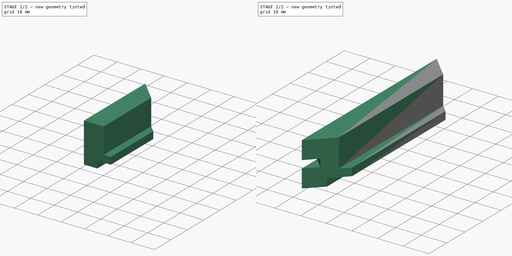
[diagram: build sequence overview — one tinted view per stage of 2, left to right]
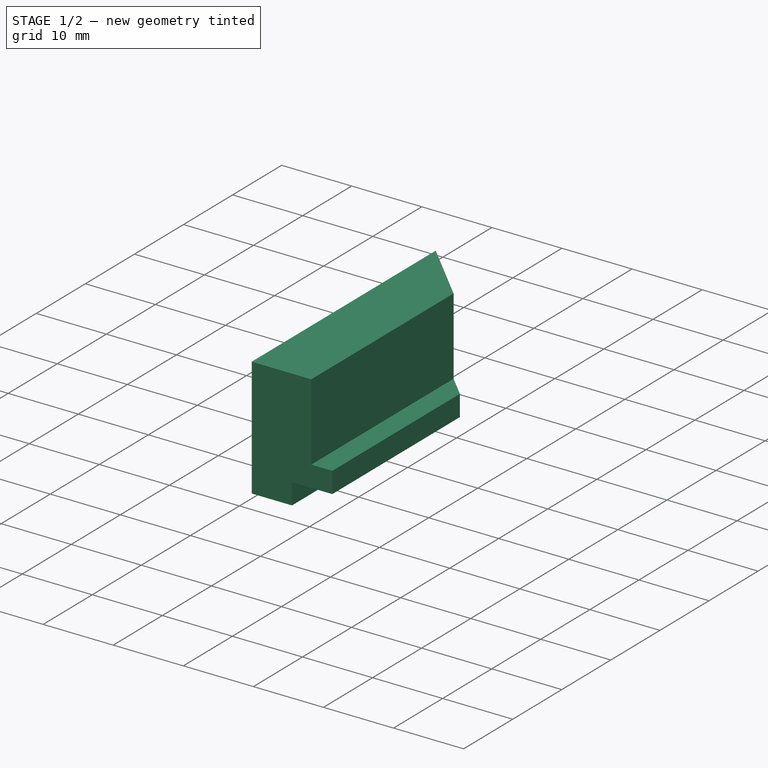
[diagram: stage 1 of 2 — iso view after this stage's code; geometry added in this stage tinted green]
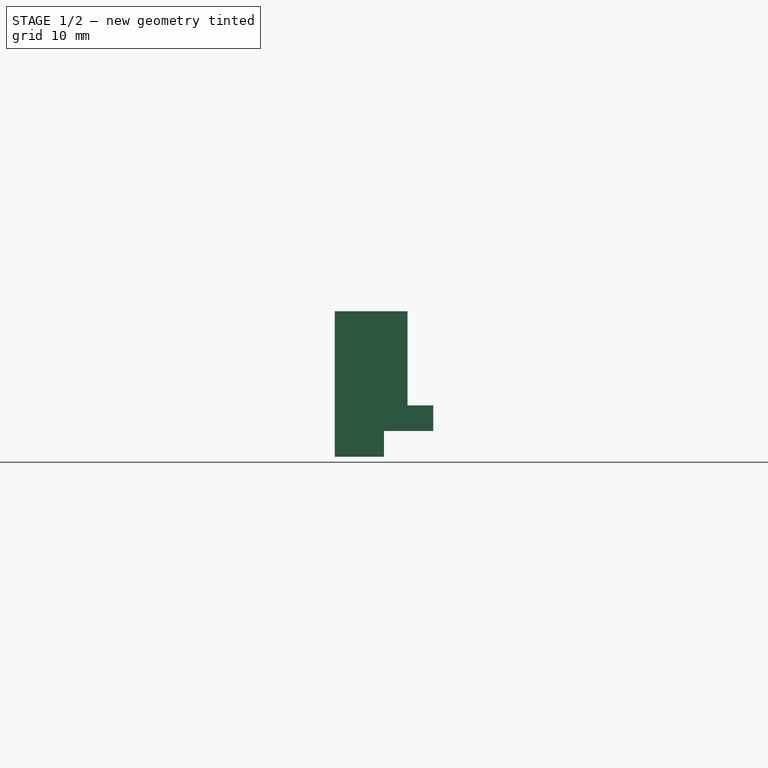
[diagram: stage 1 of 2 — front view after this stage's code; geometry added in this stage tinted green]
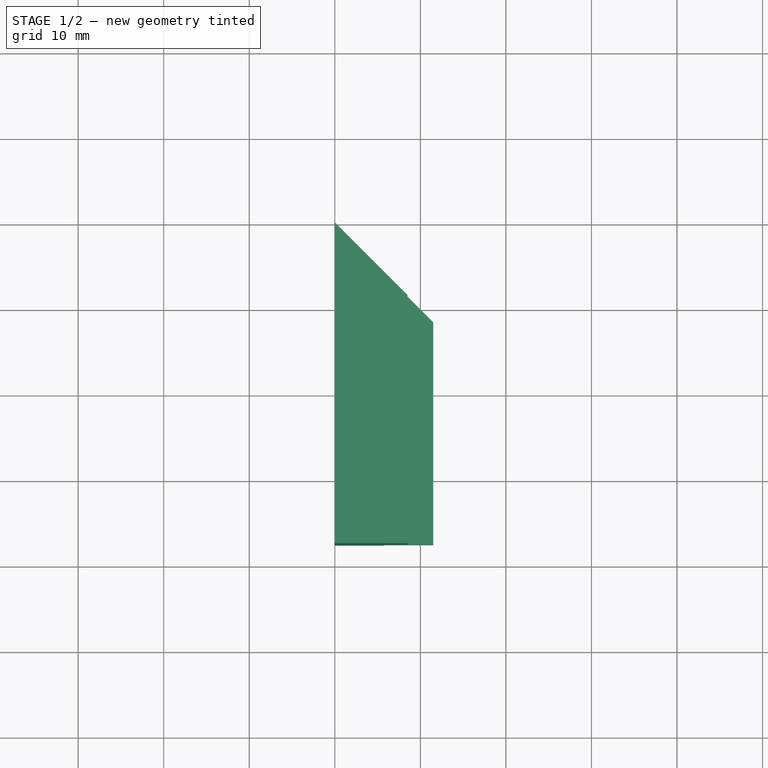
[diagram: stage 1 of 2 — top view after this stage's code; geometry added in this stage tinted green]
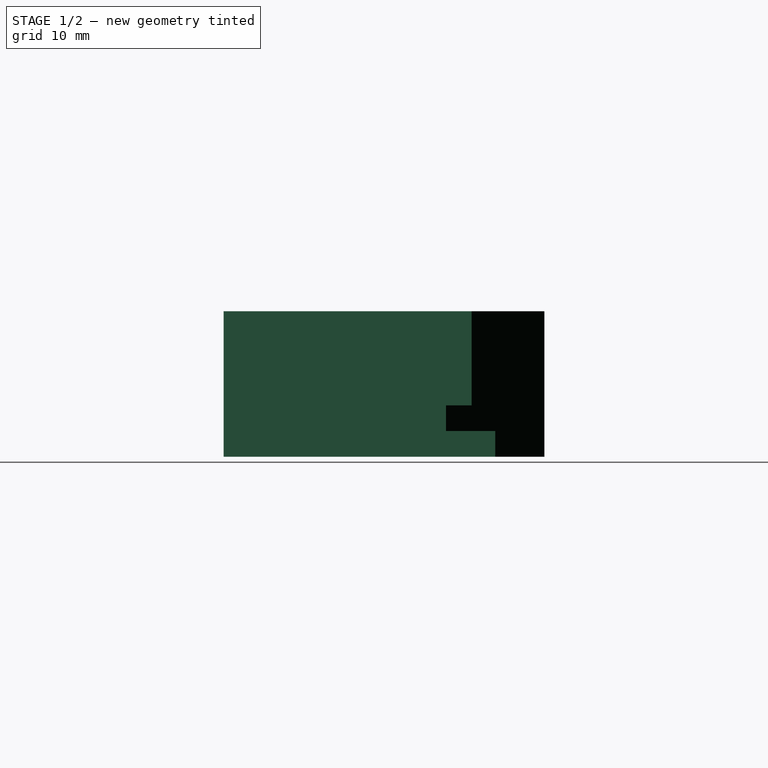
[diagram: stage 1 of 2 — right view after this stage's code; geometry added in this stage tinted green]
FCSTD DOCUMENT  (FreeCAD 0.21R33694 (Git))
Label: kumiko_lid_short
License: All rights reserved
LicenseURL: https://en.wikipedia.org/wiki/All_rights_reserved
objects: Sketcher::SketchObject×3, PartDesign::Pocket×2, PartDesign::Pad×1, PartDesign::Mirrored×1, PartDesign::Body×1, App::Link×1
note: 11 computed .brp shape members not serialized (recipe doc carries the construction recipe); baked Part::Feature solids carry a one-line shape summary decoded from their .brp
EXTERNAL_REF file=../../master_kumiko_box.FCStd obj=Spreadsheet

FEATURE [Sketcher::SketchObject] Sketch004  label="lid_profile_drawing"
  FullyConstrained = true
  MapMode = 5
  Placement = pos=(0,0,0) rot=(1,0,0;1.5708rad)
  Support = -> [XZ_Plane001]
  expr: Constraints[18] = <<SpreadSheet>>.lid_height
  expr: Constraints[19] = <<SpreadSheet>>.kumiko_hight
  expr: Constraints[20] = <<SpreadSheet>>.lid_lip_hight
  expr: Constraints[21] = <<SpreadSheet>>.lid_frame_width
  expr: Constraints[22] = <<SpreadSheet>>.box_thickness / 2
  expr: Constraints[23] = <<SpreadSheet>>.box_thickness
  sketch-geometry (8):
    g0: LineSegment StartX=0 StartY=0 StartZ=0 EndX=0 EndY=17 EndZ=0
    g1: LineSegment StartX=0 StartY=17 StartZ=0 EndX=8.5 EndY=17 EndZ=0
    g2: LineSegment StartX=8.5 StartY=17 StartZ=0 EndX=8.5 EndY=6 EndZ=0
    g3: LineSegment StartX=8.5 StartY=6 StartZ=0 EndX=11.5 EndY=6 EndZ=0
    g4: LineSegment StartX=11.5 StartY=6 StartZ=0 EndX=11.5 EndY=3 EndZ=0
    g5: LineSegment StartX=11.5 StartY=3 StartZ=0 EndX=5.75 EndY=3 EndZ=0
    g6: LineSegment StartX=5.75 StartY=3 StartZ=0 EndX=5.75 EndY=0 EndZ=0
    g7: LineSegment StartX=5.75 StartY=0 StartZ=0 EndX=0 EndY=0 EndZ=0
  constraints (24):
    c: Vertical(g0)
    c: Coincident(g1,g0)
    c: Horizontal(g1)
    c: Coincident(g2,g1)
    c: Vertical(g2)
    c: Coincident(g3,g2)
    c: Horizontal(g3)
    c: Coincident(g4,g3)
    c: Vertical(g4)
    c: Coincident(g5,g4)
    c: Horizontal(g5)
    c: Coincident(g6,g5)
    c: Vertical(g6)
    c: Coincident(g7,g6)
    c: Coincident(g7,g0)
    c: Horizontal(g7)
    c: DistanceX(g-1,g0) = 0
    c: DistanceY(g-1,g0) = 0
    c: DistanceY(g0,g0) = 17
    c: DistanceY(g2,g2) = 11
    c: DistanceY(g4,g4) = 3
    c: DistanceX(g1,g1) = 8.5
    c: DistanceX(g5,g5) = 5.75
    c: DistanceX(g0,g3) = 11.5
FEATURE [PartDesign::Pad] Pad001  label="lid_extrusion"
  Direction = (0,-1,-2e-16)
  Length = 37.5
  Length2 = 10
  Placement = pos=(0,0,0) rot=(1,0,0;1.5708rad)
  Profile = -> Sketch004
  ReferenceAxis = -> Sketch004 [N_Axis]
  Type = 0
  expr: Length = <<SpreadSheet>>.box_width / 2
FEATURE [Sketcher::SketchObject] Sketch005  label="miter_drawing"
  FullyConstrained = true
  MapMode = 5
  Placement = pos=(0,0,0) rot=(1,0,0;3.14159rad)
  Support = -> [Pad001]
  expr: Constraints[6] = <<SpreadSheet>>.box_thickness
  expr: Constraints[8] = <<SpreadSheet>>.box_thickness
  sketch-geometry (3):
    g0: LineSegment StartX=0 StartY=0 StartZ=0 EndX=11.5 EndY=0 EndZ=0
    g1: LineSegment StartX=11.5 StartY=0 StartZ=0 EndX=11.5 EndY=11.5 EndZ=0
    g2: LineSegment StartX=11.5 StartY=11.5 StartZ=0 EndX=0 EndY=0 EndZ=0
  constraints (9):
    c: Horizontal(g0)
    c: Coincident(g1,g0)
    c: Vertical(g1)
    c: Coincident(g2,g1)
    c: Coincident(g2,g0)
    c: DistanceX(g-1,g0) = 0
    c: DistanceX(g-1,g0) = 11.5
    c: DistanceY(g0,g-1) = 0
    c: DistanceY(g0,g1) = 11.5
FEATURE [PartDesign::Pocket] Pocket002  label="miter_cut"
  BaseFeature = -> Pad001
  Direction = (0,-2e-16,1)
  Length = 17
  Length2 = 5
  Placement = pos=(0,0,0) rot=(1,0,0;1.5708rad)
  Profile = -> Sketch005
  ReferenceAxis = -> Sketch005 [N_Axis]
  Type = 0
  expr: Length = <<SpreadSheet>>.lid_height
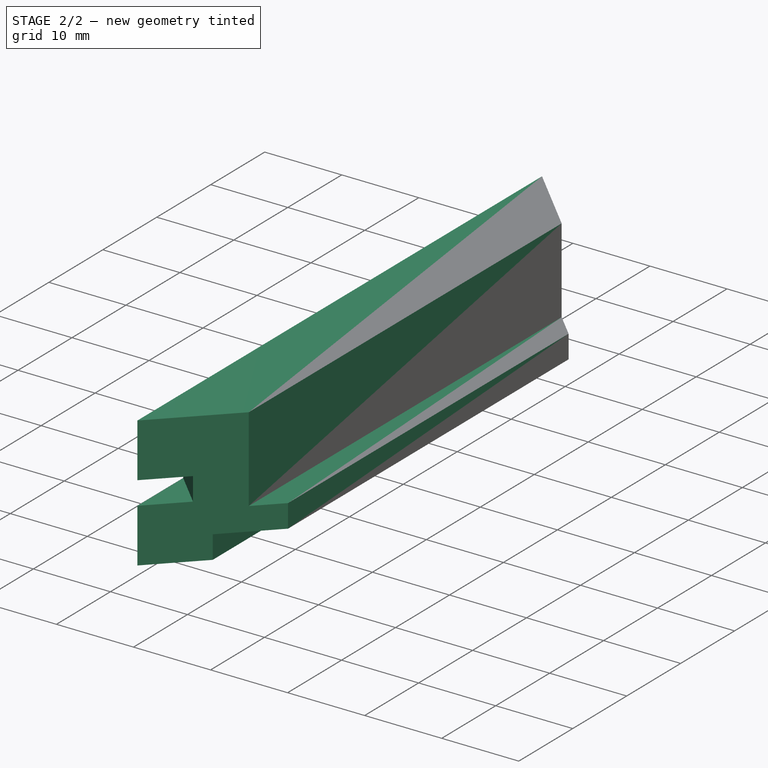
[diagram: stage 2 of 2 — iso view after this stage's code; geometry added in this stage tinted green]
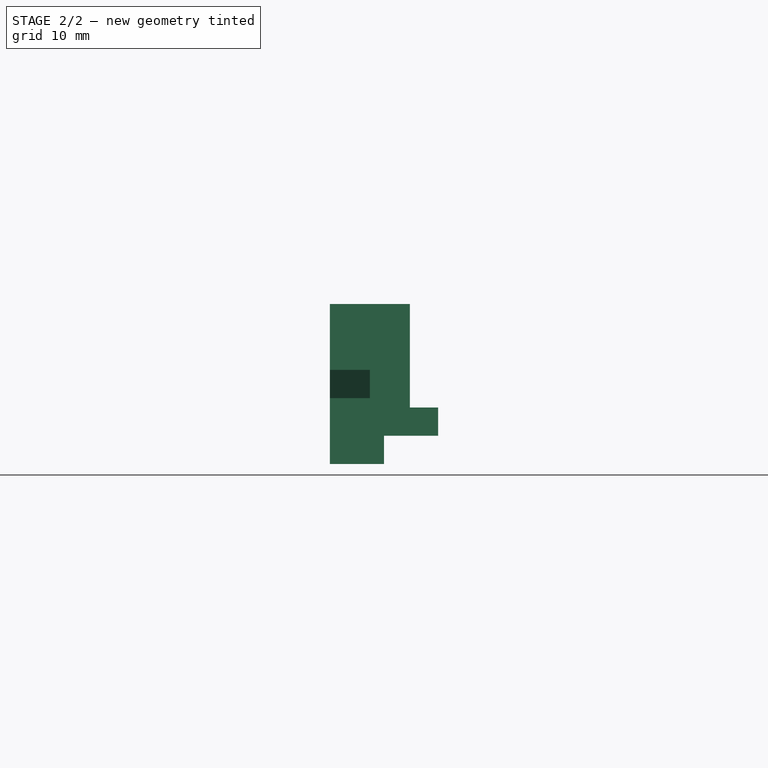
[diagram: stage 2 of 2 — front view after this stage's code; geometry added in this stage tinted green]
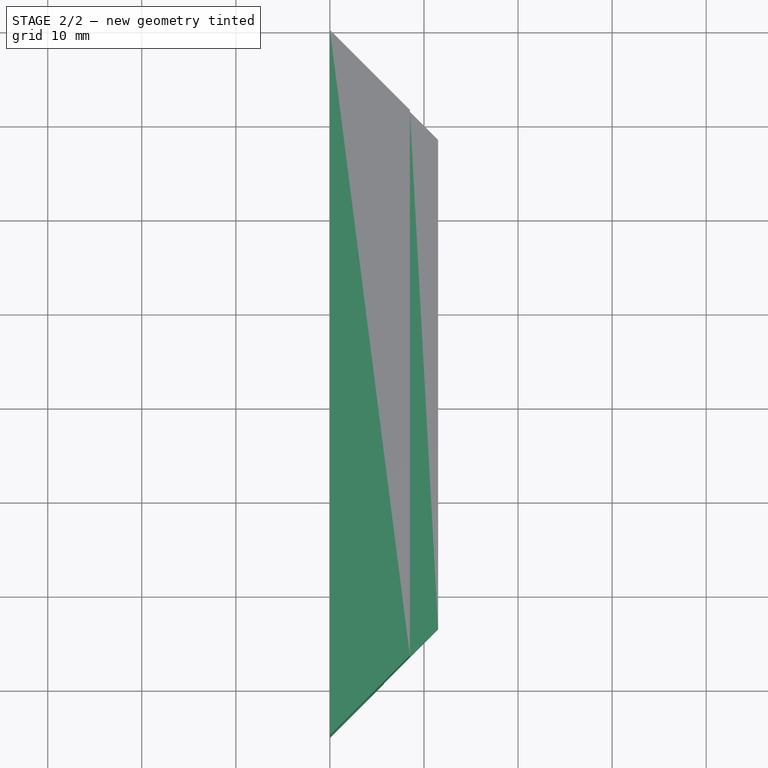
[diagram: stage 2 of 2 — top view after this stage's code; geometry added in this stage tinted green]
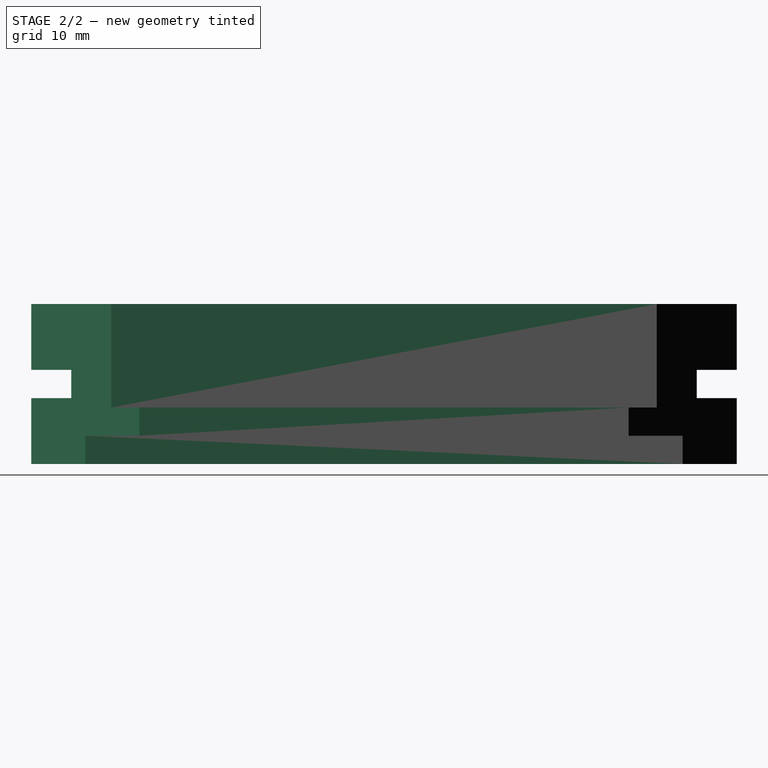
[diagram: stage 2 of 2 — right view after this stage's code; geometry added in this stage tinted green]
FEATURE [Sketcher::SketchObject] Sketch006  label="miter_key_drawing"
  FullyConstrained = true
  MapMode = 5
  Placement = pos=(0,0,0) rot=(0.678598,0.281085,0.678598;3.68962rad)
  Support = -> [Pocket002]
  expr: Constraints[10] = <<SpreadSheet>>.kumiko_thickness
  expr: Constraints[11] = <<SpreadSheet>>.lid_frame_width * sqrt(2) / 2
  expr: Constraints[9] = (<<SpreadSheet>>.lid_height - <<SpreadSheet>>.kumiko_thickness) / 2
  sketch-geometry (4):
    g0: LineSegment StartX=7 StartY=6.01041 StartZ=0 EndX=10 EndY=6.01041 EndZ=0
    g1: LineSegment StartX=10 StartY=6.01041 StartZ=0 EndX=10 EndY=0 EndZ=0
    g2: LineSegment StartX=10 StartY=0 StartZ=0 EndX=7 EndY=0 EndZ=0
    g3: LineSegment StartX=7 StartY=0 StartZ=0 EndX=7 EndY=6.01041 EndZ=0
  constraints (12):
    c: Coincident(g0,g1)
    c: Coincident(g1,g2)
    c: Coincident(g2,g3)
    c: Coincident(g3,g0)
    c: Horizontal(g0)
    c: Horizontal(g2)
    c: Vertical(g1)
    c: Vertical(g3)
    c: PointOnObject(g1,g-1)
    c: DistanceX(g-1,g2) = 7
    c: DistanceX(g0,g0) = 3
    c: DistanceY(g-1,g0) = 6.01041
FEATURE [PartDesign::Pocket] Pocket003  label="miter_key_cut"
  BaseFeature = -> Pocket002
  Direction = (-0.707107,-0.707107,-1e-16)
  Length = 4
  Length2 = 5
  Placement = pos=(0,0,0) rot=(1,0,0;1.5708rad)
  Profile = -> Sketch006
  ReferenceAxis = -> Sketch006 [N_Axis]
  Type = 1
FEATURE [PartDesign::Mirrored] Mirrored001  label="lid_mirror"
  BaseFeature = -> Pocket003
  MirrorPlane = -> Pocket003 [Face7]
  Originals = -> [Pad001,Pocket002,Pocket003]
  Placement = pos=(0,0,0) rot=(1,0,0;1.5708rad)
  Refine = true
FEATURE [PartDesign::Body] Body001  label="lid_side"
  Group = -> [Sketch004,Pad001,Sketch005,Pocket002,Sketch006,Pocket003,Mirrored001]
  Origin = -> Origin001
  Tip = -> Mirrored001
  expr: .Placement.Base.x = 0
  expr: .Placement.Base.y = 0
  expr: .Placement.Base.z = 0
  expr: .Placement.Rotation.Angle = 0
  expr: .Placement.Rotation.Axis.x = 0
  expr: .Placement.Rotation.Axis.y = 0
  expr: .Placement.Rotation.Axis.z = 1
FEATURE [App::Link] Link  label="SpreadSheet"
  LinkedObject = -> <external ../../master_kumiko_box.FCStd>#Spreadsheet
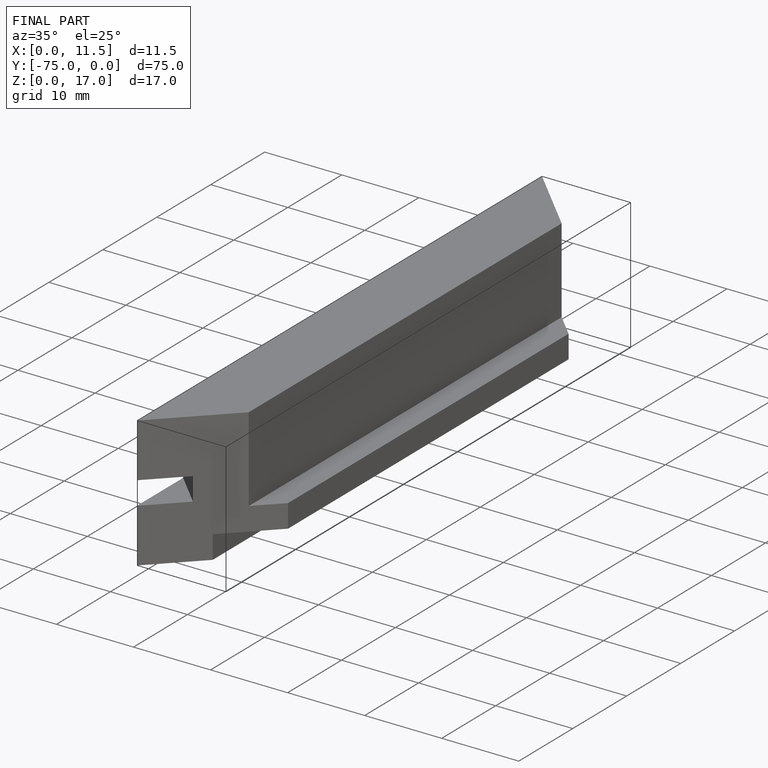
[diagram: finished part — iso view with bounding-box wireframe]
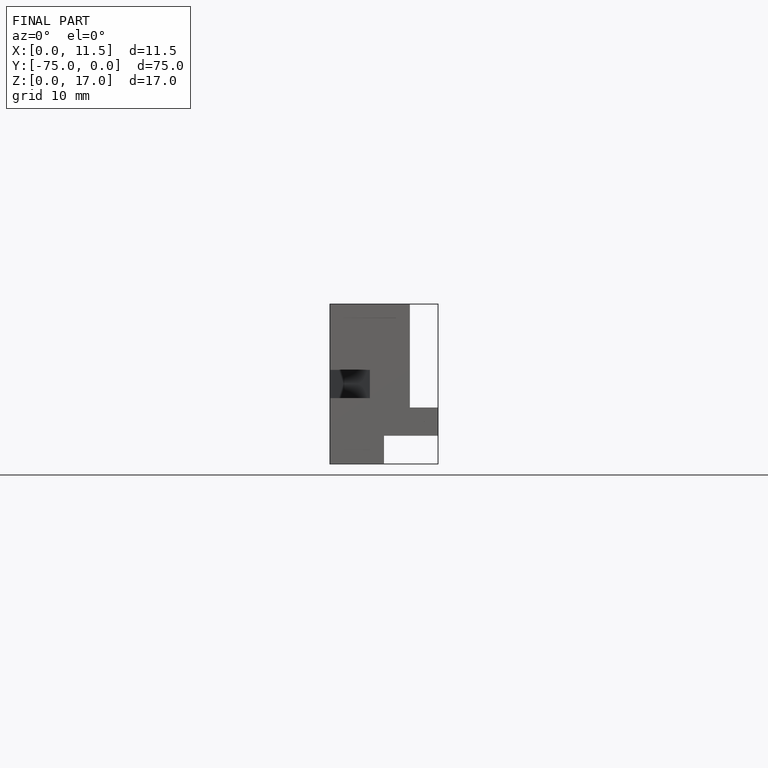
[diagram: finished part — front view with bounding-box wireframe]
